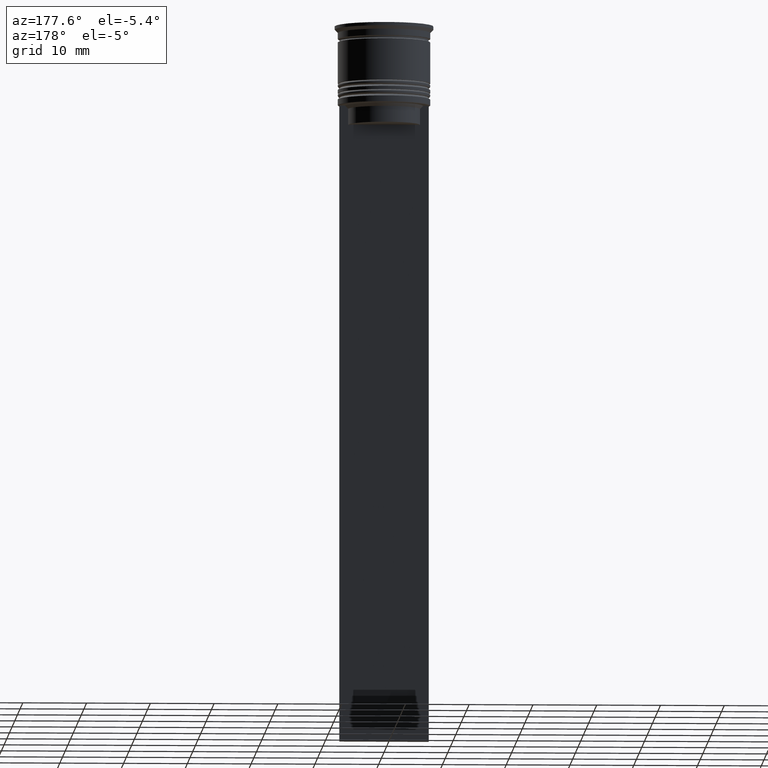
[diagram: clean part render]
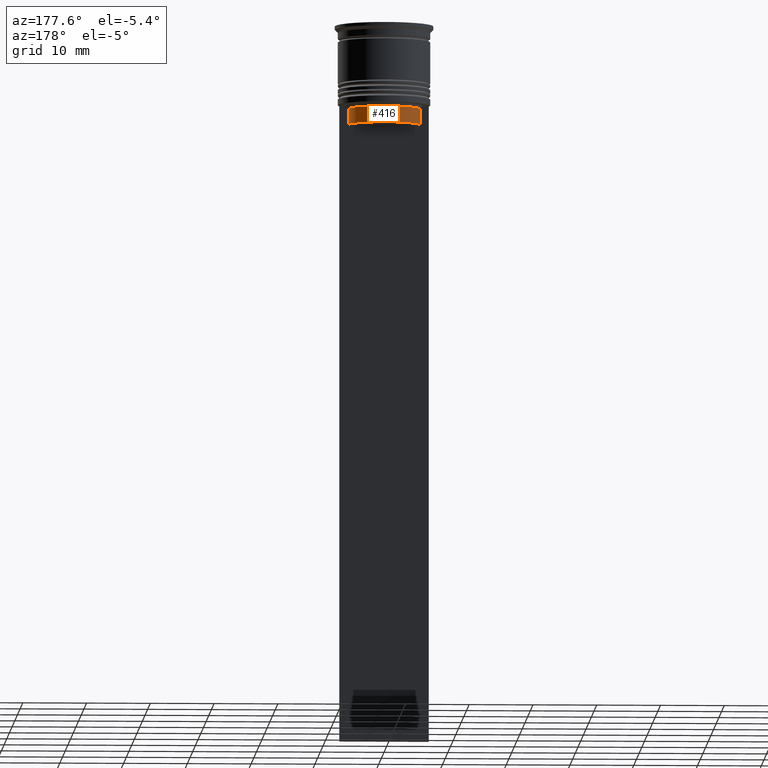
[diagram: same view with one face highlighted and labeled with its STEP entity id]
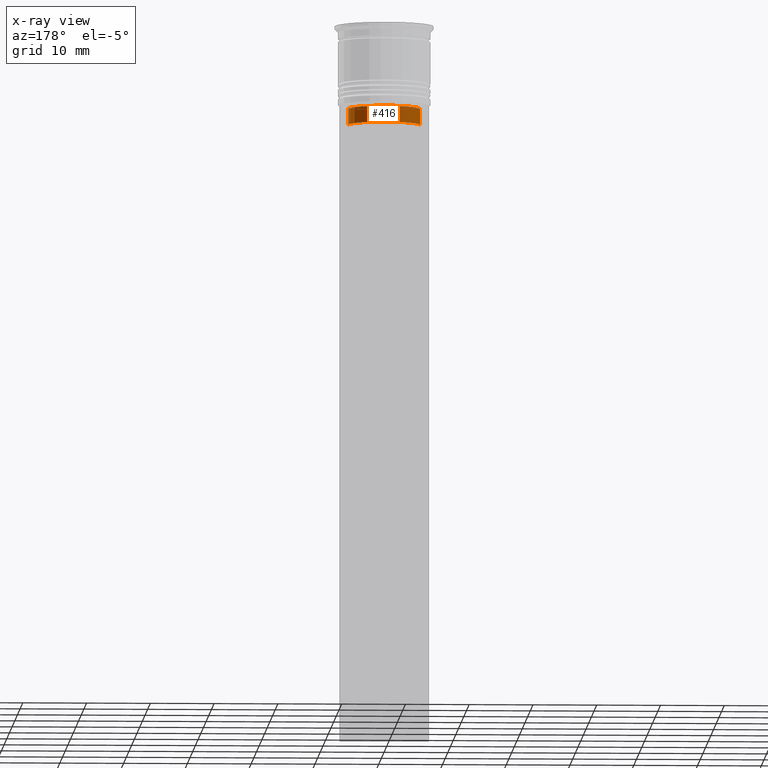
[diagram: x-ray of the same camera — body ghosted, the highlighted face saturated]
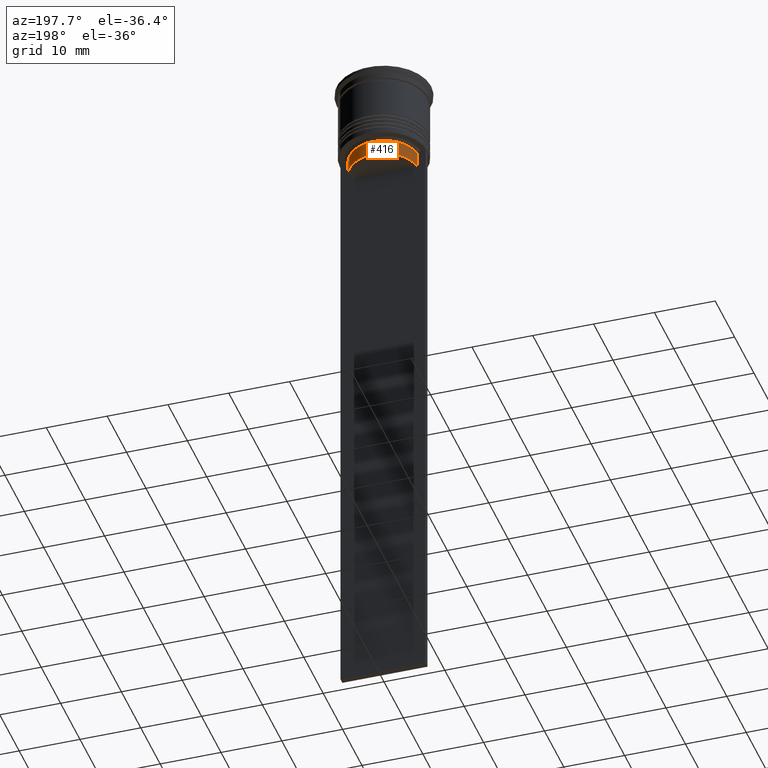
[diagram: same view with one face highlighted and labeled with its STEP entity id]
A machine part, auxiliary view. The second image highlights one B-rep face of the part: STEP entity #416.
The next image is the same camera in x-ray: the body ghosted, the highlighted face saturated — about 0% of this face is hidden behind the body in this view.
A second angle (auxiliary view) of the same face is appended — the face is thin or edge-on in the first view.
In plain terms, the highlighted cylindrical surface (edge-blend (fillet) strip) has radius 5.65 mm, axis along (-0, -0, 1).
Its self-contained STEP definition (entity closure, byte-faithful):
#25 = CARTESIAN_POINT ( 'NONE',  ( 0.000000000000000000, 0.000000000000000000, -15.50000000000000000 ) ) ;
#107 = EDGE_CURVE ( 'NONE', #1101, #1411, #1631, .T. ) ;
#124 = CARTESIAN_POINT ( 'NONE',  ( 5.627832620112292794, 0.4999999999999978351, -15.50000000000000000 ) ) ;
#158 = EDGE_CURVE ( 'NONE', #1101, #998, #1783, .T. ) ;
#190 = EDGE_CURVE ( 'NONE', #998, #672, #878, .T. ) ;
#231 = VECTOR ( 'NONE', #2157, 1000.000000000000000 ) ;
#416 = ADVANCED_FACE ( 'NONE', ( #970 ), #1319, .T. ) ;
#423 = AXIS2_PLACEMENT_3D ( 'NONE', #831, #1528, #1245 ) ;
#520 = LINE ( 'NONE', #1369, #880 ) ;
#529 = EDGE_CURVE ( 'NONE', #672, #1411, #520, .T. ) ;
#649 = CARTESIAN_POINT ( 'NONE',  ( 5.627832620112292794, 0.4999999999999978351, -13.00000000000000000 ) ) ;
#672 = VERTEX_POINT ( 'NONE', #869 ) ;
#745 = DIRECTION ( 'NONE',  ( -0.000000000000000000, -0.000000000000000000, 1.000000000000000000 ) ) ;
#787 = CARTESIAN_POINT ( 'NONE',  ( -5.627832620112292794, 0.4999999999999978351, -15.50000000000000000 ) ) ;
#826 = CARTESIAN_POINT ( 'NONE',  ( 0.000000000000000000, 0.000000000000000000, 0.000000000000000000 ) ) ;
#831 = CARTESIAN_POINT ( 'NONE',  ( 0.000000000000000000, 0.000000000000000000, -13.00000000000000000 ) ) ;
#869 = CARTESIAN_POINT ( 'NONE',  ( -5.627832620112292794, 0.4999999999999978351, -13.00000000000000000 ) ) ;
#878 = CIRCLE ( 'NONE', #423, 5.649999999999997691 ) ;
#880 = VECTOR ( 'NONE', #1964, 1000.000000000000000 ) ;
#969 = ORIENTED_EDGE ( 'NONE', *, *, #107, .T. ) ;
#970 = FACE_OUTER_BOUND ( 'NONE', #1099, .T. ) ;
#998 = VERTEX_POINT ( 'NONE', #649 ) ;
#1099 = EDGE_LOOP ( 'NONE', ( #1823, #969, #1665, #1630 ) ) ;
#1101 = VERTEX_POINT ( 'NONE', #124 ) ;
#1143 = AXIS2_PLACEMENT_3D ( 'NONE', #25, #745, #1551 ) ;
#1245 = DIRECTION ( 'NONE',  ( 1.000000000000000000, 0.000000000000000000, 0.000000000000000000 ) ) ;
#1319 = CYLINDRICAL_SURFACE ( 'NONE', #1634, 5.649999999999998579 ) ;
#1369 = CARTESIAN_POINT ( 'NONE',  ( -5.627832620112292794, 0.4999999999999978351, 0.000000000000000000 ) ) ;
#1411 = VERTEX_POINT ( 'NONE', #787 ) ;
#1528 = DIRECTION ( 'NONE',  ( -0.000000000000000000, -0.000000000000000000, 1.000000000000000000 ) ) ;
#1551 = DIRECTION ( 'NONE',  ( 1.000000000000000000, 0.000000000000000000, 0.000000000000000000 ) ) ;
#1630 = ORIENTED_EDGE ( 'NONE', *, *, #190, .F. ) ;
#1631 = CIRCLE ( 'NONE', #1143, 5.649999999999998579 ) ;
#1634 = AXIS2_PLACEMENT_3D ( 'NONE', #826, #2073, #1688 ) ;
#1665 = ORIENTED_EDGE ( 'NONE', *, *, #529, .F. ) ;
#1688 = DIRECTION ( 'NONE',  ( 1.000000000000000000, 0.000000000000000000, 0.000000000000000000 ) ) ;
#1783 = LINE ( 'NONE', #2265, #231 ) ;
#1823 = ORIENTED_EDGE ( 'NONE', *, *, #158, .F. ) ;
#1964 = DIRECTION ( 'NONE',  ( 0.000000000000000000, 0.000000000000000000, -1.000000000000000000 ) ) ;
#2073 = DIRECTION ( 'NONE',  ( -0.000000000000000000, -0.000000000000000000, 1.000000000000000000 ) ) ;
#2157 = DIRECTION ( 'NONE',  ( -0.000000000000000000, -0.000000000000000000, 1.000000000000000000 ) ) ;
#2265 = CARTESIAN_POINT ( 'NONE',  ( 5.627832620112292794, 0.4999999999999978351, 0.000000000000000000 ) ) ;